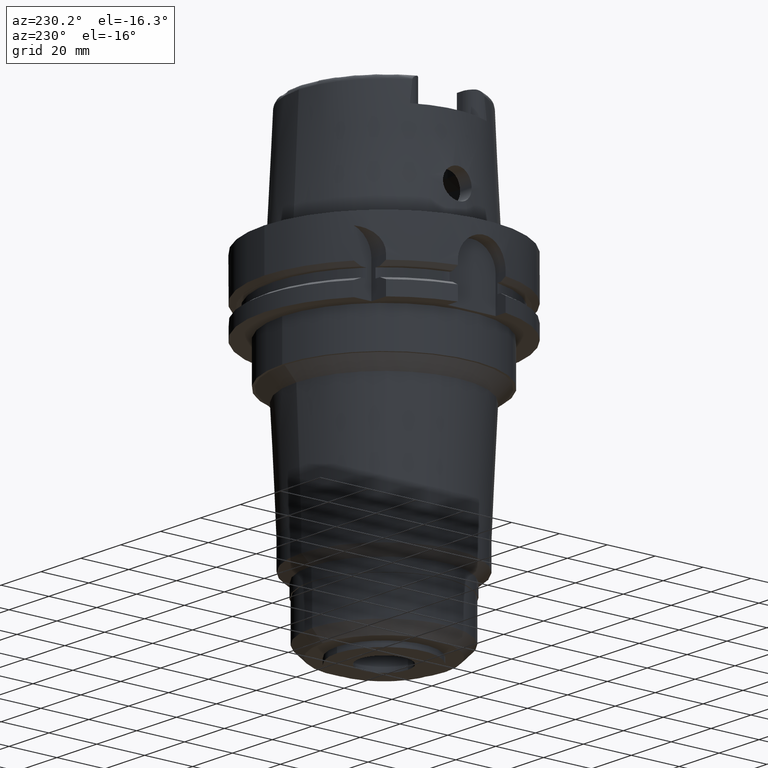
[diagram: clean part render]
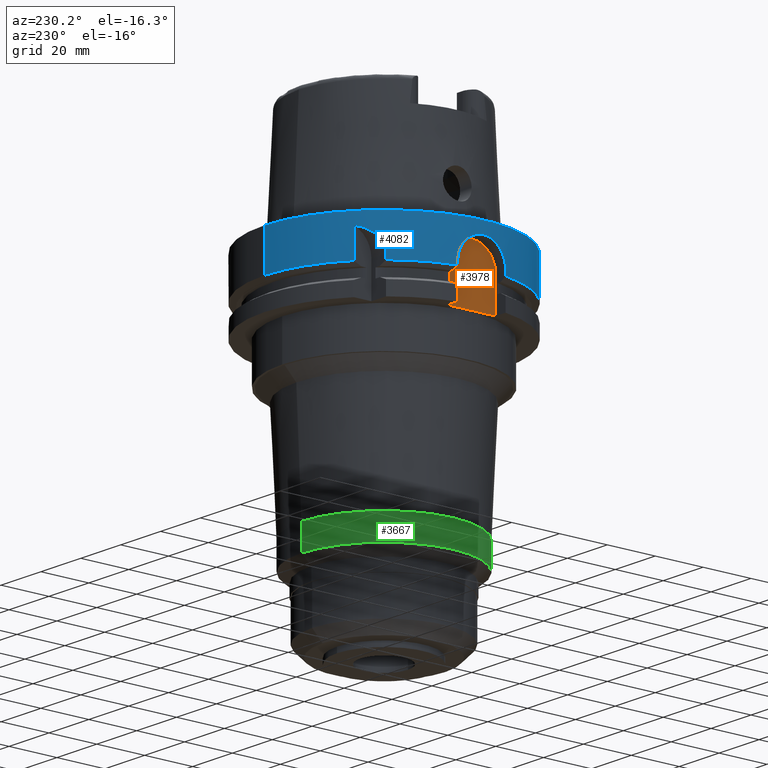
[diagram: same view with three faces highlighted in distinct colors, each labeled with its STEP entity id]
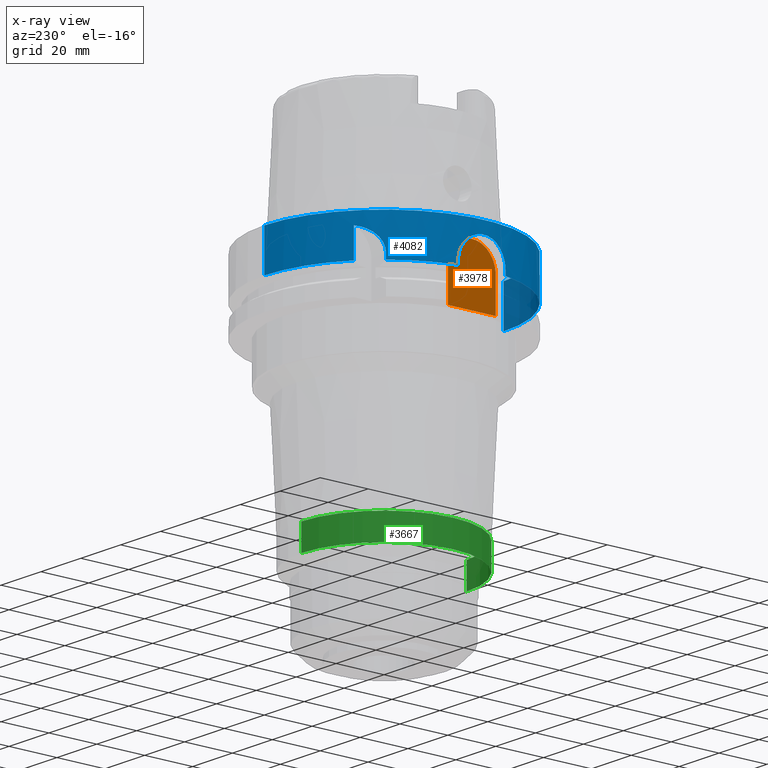
[diagram: x-ray of the same camera — body ghosted, the three highlighted faces saturated]
A machine part, auxiliary view with three faces highlighted in distinct colors.
The next image is the same camera in x-ray (body ghosted, the three faces saturated) — at least one of them is partly hidden behind the body in this view.
Their STEP definitions:

[orange] entity #3978 — the highlighted planar face has unit normal (1, 0, 0).
#1545=DIRECTION('',(0.E0,0.E0,1.E0));
#1546=VECTOR('',#1545,1.4E1);
#1547=CARTESIAN_POINT('',(-4.4E1,-1.E1,-2.9E1));
#1548=LINE('',#1547,#1546);
#1559=DIRECTION('',(0.E0,1.E0,0.E0));
#1560=VECTOR('',#1559,2.E1);
#1561=CARTESIAN_POINT('',(-4.4E1,-1.E1,-2.9E1));
#1562=LINE('',#1561,#1560);
#1566=CARTESIAN_POINT('',(-4.4E1,0.E0,-1.5E1));
#1567=DIRECTION('',(1.E0,0.E0,0.E0));
#1568=DIRECTION('',(0.E0,1.E0,0.E0));
#1569=AXIS2_PLACEMENT_3D('',#1566,#1567,#1568);
#1574=CARTESIAN_POINT('',(-4.4E1,0.E0,-1.5E1));
#1575=DIRECTION('',(1.E0,0.E0,0.E0));
#1576=DIRECTION('',(0.E0,0.E0,1.E0));
#1577=AXIS2_PLACEMENT_3D('',#1574,#1575,#1576);
#1596=DIRECTION('',(0.E0,0.E0,-1.E0));
#1597=VECTOR('',#1596,1.4E1);
#1598=CARTESIAN_POINT('',(-4.4E1,1.E1,-1.5E1));
#1599=LINE('',#1598,#1597);
#2600=CARTESIAN_POINT('',(-4.4E1,1.E1,-2.9E1));
#2601=VERTEX_POINT('',#2600);
#2602=CARTESIAN_POINT('',(-4.4E1,-1.E1,-2.9E1));
#2603=VERTEX_POINT('',#2602);
#2646=CARTESIAN_POINT('',(-4.4E1,-1.E1,-1.5E1));
#2647=VERTEX_POINT('',#2646);
#2659=CARTESIAN_POINT('',(-4.4E1,1.E1,-1.5E1));
#2660=VERTEX_POINT('',#2659);
#2661=CARTESIAN_POINT('',(-4.4E1,0.E0,-5.E0));
#2662=VERTEX_POINT('',#2661);
#3963=CARTESIAN_POINT('',(-4.4E1,0.E0,0.E0));
#3964=DIRECTION('',(1.E0,0.E0,0.E0));
#3965=DIRECTION('',(0.E0,0.E0,1.E0));
#3966=AXIS2_PLACEMENT_3D('',#3963,#3964,#3965);
#3967=PLANE('',#3966);
#3968=ORIENTED_EDGE('',*,*,#3781,.T.);
#3970=ORIENTED_EDGE('',*,*,#3969,.F.);
#3972=ORIENTED_EDGE('',*,*,#3971,.T.);
#3974=ORIENTED_EDGE('',*,*,#3973,.T.);
#3975=ORIENTED_EDGE('',*,*,#3943,.F.);
#3976=EDGE_LOOP('',(#3968,#3970,#3972,#3974,#3975));
#3977=FACE_OUTER_BOUND('',#3976,.F.);
#1570=CIRCLE('',#1569,1.E1);
#1578=CIRCLE('',#1577,1.E1);
#3781=EDGE_CURVE('',#2603,#2601,#1562,.T.);
#3943=EDGE_CURVE('',#2603,#2647,#1548,.T.);
#3969=EDGE_CURVE('',#2660,#2601,#1599,.T.);
#3971=EDGE_CURVE('',#2660,#2662,#1570,.T.);
#3973=EDGE_CURVE('',#2662,#2647,#1578,.T.);
#3978=ADVANCED_FACE('',(#3977),#3967,.F.);

[blue] entity #4082 — the highlighted cylindrical surface (partial cylindrical patch) has radius 50 mm, axis along (0, 0, -1).
#1648=DIRECTION('',(7.023958081267E-8,5.698055157315E-8,-1.E0));
#1649=VECTOR('',#1648,1.175240773721E1);
#1650=CARTESIAN_POINT('',(-3.15E1,3.882975663071E1,-5.000000000003E0));
#1651=LINE('',#1650,#1649);
#1655=DIRECTION('',(0.E0,2.926591706721E-14,-1.E0));
#1656=VECTOR('',#1655,1.675240473581E1);
#1657=CARTESIAN_POINT('',(0.E0,-5.E1,6.631732200428E-14));
#1658=LINE('',#1657,#1656);
#1662=DIRECTION('',(3.933032361779E-13,-2.432803522750E-14,1.E0));
#1663=VECTOR('',#1662,1.752404735809E0);
#1664=CARTESIAN_POINT('',(-4.898979485566E1,-1.E1,-1.675240473581E1));
#1665=LINE('',#1664,#1663);
#1669=DIRECTION('',(-4.014125812538E-13,-2.230069895854E-14,-1.E0));
#1670=VECTOR('',#1669,1.752404735809E0);
#1671=CARTESIAN_POINT('',(-4.898979485566E1,1.E1,-1.5E1));
#1672=LINE('',#1671,#1670);
#1676=DIRECTION('',(-1.365148137456E-6,-1.682804141260E-6,9.999999999977E-1));
#1677=VECTOR('',#1676,2.115493932319E0);
#1678=CARTESIAN_POINT('',(-3.882975374275E1,3.150000355996E1,
-1.675239179152E1));
#1679=LINE('',#1678,#1677);
#1683=CARTESIAN_POINT('',(-3.882975663071E1,3.15E1,-1.463689785921E1));
#1684=CARTESIAN_POINT('',(-3.882975663071E1,3.15E1,-1.433064616821E1));
#1685=CARTESIAN_POINT('',(-3.880705422970E1,3.152801625396E1,
-1.372017333491E1));
#1686=CARTESIAN_POINT('',(-3.870428885565E1,3.165427416406E1,
-1.280789797049E1));
#1687=CARTESIAN_POINT('',(-3.853135160639E1,3.186487466063E1,
-1.190702947096E1));
#1688=CARTESIAN_POINT('',(-3.828481064790E1,3.216112138799E1,
-1.102040384754E1));
#1689=CARTESIAN_POINT('',(-3.796154875337E1,3.254265071600E1,
-1.015735258912E1));
#1690=CARTESIAN_POINT('',(-3.755549775941E1,3.301119514877E1,
-9.321662307711E0));
#1691=CARTESIAN_POINT('',(-3.705885492241E1,3.356872838063E1,
-8.519828889401E0));
#1692=CARTESIAN_POINT('',(-3.646394593133E1,3.421519580033E1,
-7.761523285296E0));
#1693=CARTESIAN_POINT('',(-3.575809827891E1,3.495362824459E1,
-7.053893448232E0));
#1694=CARTESIAN_POINT('',(-3.493062110161E1,3.578229936536E1,
-6.409707496162E0));
#1695=CARTESIAN_POINT('',(-3.396221594229E1,3.670477659687E1,
-5.838585168829E0));
#1696=CARTESIAN_POINT('',(-3.283745498727E1,3.771686812123E1,
-5.356688262591E0));
#1697=CARTESIAN_POINT('',(-3.196702761034E1,3.845088818027E1,
-5.104978903215E0));
#1698=CARTESIAN_POINT('',(-3.15E1,3.882975663071E1,-5.000000000003E0));
#1703=CARTESIAN_POINT('',(-3.149999917452E1,3.882975730037E1,
-1.675240773721E1));
#1731=CARTESIAN_POINT('',(0.E0,1.011084288786E-14,-1.675240473581E1));
#1732=DIRECTION('',(0.E0,0.E0,1.E0));
#1733=DIRECTION('',(0.E0,1.E0,0.E0));
#1734=AXIS2_PLACEMENT_3D('',#1731,#1732,#1733);
#1878=DIRECTION('',(0.E0,-2.926591706721E-14,-1.E0));
#1879=VECTOR('',#1878,1.675240473581E1);
#1880=CARTESIAN_POINT('',(0.E0,5.E1,6.631732200428E-14));
#1881=LINE('',#1880,#1879);
#1952=CARTESIAN_POINT('',(0.E0,1.011084288786E-14,-1.675240473581E1));
#1953=DIRECTION('',(0.E0,0.E0,1.E0));
#1954=DIRECTION('',(-9.797958971133E-1,-2.E-1,0.E0));
#1955=AXIS2_PLACEMENT_3D('',#1952,#1953,#1954);
#2106=CARTESIAN_POINT('',(0.E0,1.951719603801E-14,9.237055564881E-14));
#2107=DIRECTION('',(0.E0,0.E0,-1.E0));
#2108=DIRECTION('',(0.E0,-1.E0,0.E0));
#2109=AXIS2_PLACEMENT_3D('',#2106,#2107,#2108);
#2138=CARTESIAN_POINT('',(-4.898979485566E1,1.E1,-1.5E1));
#2139=CARTESIAN_POINT('',(-4.898979485566E1,1.E1,-1.426108339054E1));
#2140=CARTESIAN_POINT('',(-4.902380397179E1,9.835573181092E0,
-1.277773796762E1));
#2141=CARTESIAN_POINT('',(-4.916882506048E1,9.096390976145E0,
-1.064602762517E1));
#2142=CARTESIAN_POINT('',(-4.938004913442E1,7.892536922872E0,
-8.720777334128E0));
#2143=CARTESIAN_POINT('',(-4.961472990509E1,6.281193322602E0,
-7.108977901548E0));
#2144=CARTESIAN_POINT('',(-4.982397989539E1,4.355986646170E0,
-5.904662998027E0));
#2145=CARTESIAN_POINT('',(-4.996651786456E1,2.226278022797E0,
-5.165424488101E0));
#2146=CARTESIAN_POINT('',(-5.001677347920E1,-1.478587469200E-3,
-4.917124513238E0));
#2147=CARTESIAN_POINT('',(-4.996638810610E1,-2.229127438262E0,
-5.166078098979E0));
#2148=CARTESIAN_POINT('',(-4.982375143675E1,-4.358568224988E0,
-5.905888858995E0));
#2149=CARTESIAN_POINT('',(-4.961443094385E1,-6.283534592861E0,
-7.110860296475E0));
#2150=CARTESIAN_POINT('',(-4.937976574419E1,-7.894254858084E0,
-8.722905111692E0));
#2151=CARTESIAN_POINT('',(-4.916856876748E1,-9.097827969053E0,
-1.064902048529E1));
#2152=CARTESIAN_POINT('',(-4.902370122882E1,-9.835971298666E0,
-1.278006468368E1));
#2153=CARTESIAN_POINT('',(-4.898979485566E1,-1.E1,-1.426200339766E1));
#2154=CARTESIAN_POINT('',(-4.898979485566E1,-1.E1,-1.5E1));
#2178=CARTESIAN_POINT('',(-3.882975374275E1,3.150000355996E1,
-1.675239179152E1));
#2183=CARTESIAN_POINT('',(0.E0,1.011084288786E-14,-1.675240473581E1));
#2184=DIRECTION('',(0.E0,0.E0,1.E0));
#2185=DIRECTION('',(-7.765951326142E-1,6.3E-1,0.E0));
#2186=AXIS2_PLACEMENT_3D('',#2183,#2184,#2185);
#2191=CARTESIAN_POINT('',(-4.898979485566E1,1.E1,-1.675240473581E1));
#2627=VERTEX_POINT('',#1703);
#2628=CARTESIAN_POINT('',(-3.15E1,3.882975663071E1,-5.000000000003E0));
#2629=VERTEX_POINT('',#2628);
#2648=CARTESIAN_POINT('',(-4.898979485566E1,-1.E1,-1.5E1));
#2649=VERTEX_POINT('',#2648);
#2650=CARTESIAN_POINT('',(-4.898979485566E1,-1.E1,-1.675240473581E1));
#2651=VERTEX_POINT('',#2650);
#2670=VERTEX_POINT('',#2191);
#2671=CARTESIAN_POINT('',(-4.898979485566E1,1.E1,-1.5E1));
#2672=VERTEX_POINT('',#2671);
#2711=CARTESIAN_POINT('',(0.E0,-5.E1,-1.675240473581E1));
#2712=VERTEX_POINT('',#2711);
#2716=CARTESIAN_POINT('',(0.E0,5.E1,-1.675240473581E1));
#2717=VERTEX_POINT('',#2716);
#2718=VERTEX_POINT('',#2178);
#2719=CARTESIAN_POINT('',(0.E0,5.E1,6.631732200428E-14));
#2720=VERTEX_POINT('',#2719);
#2721=CARTESIAN_POINT('',(0.E0,-5.E1,9.237055564881E-14));
#2722=VERTEX_POINT('',#2721);
#2723=CARTESIAN_POINT('',(-3.882975663071E1,3.15E1,-1.463689785921E1));
#2724=VERTEX_POINT('',#2723);
#4056=CARTESIAN_POINT('',(0.E0,1.951719603801E-14,5.937E1));
#4057=DIRECTION('',(0.E0,0.E0,-1.E0));
#4058=DIRECTION('',(0.E0,-1.E0,0.E0));
#4059=AXIS2_PLACEMENT_3D('',#4056,#4057,#4058);
#4060=CYLINDRICAL_SURFACE('',#4059,5.E1);
#4061=ORIENTED_EDGE('',*,*,#3824,.T.);
#4063=ORIENTED_EDGE('',*,*,#4062,.F.);
#4065=ORIENTED_EDGE('',*,*,#4064,.F.);
#4067=ORIENTED_EDGE('',*,*,#4066,.F.);
#4069=ORIENTED_EDGE('',*,*,#4068,.T.);
#4071=ORIENTED_EDGE('',*,*,#4070,.F.);
#4072=ORIENTED_EDGE('',*,*,#3947,.T.);
#4074=ORIENTED_EDGE('',*,*,#4073,.F.);
#4075=ORIENTED_EDGE('',*,*,#3997,.T.);
#4077=ORIENTED_EDGE('',*,*,#4076,.F.);
#4078=ORIENTED_EDGE('',*,*,#4028,.T.);
#4079=ORIENTED_EDGE('',*,*,#4049,.T.);
#4080=EDGE_LOOP('',(#4061,#4063,#4065,#4067,#4069,#4071,#4072,#4074,#4075,#4077,
#4078,#4079));
#4081=FACE_OUTER_BOUND('',#4080,.F.);
#1699=B_SPLINE_CURVE_WITH_KNOTS('',3,(#1683,#1684,#1685,#1686,#1687,#1688,#1689,
#1690,#1691,#1692,#1693,#1694,#1695,#1696,#1697,#1698),.UNSPECIFIED.,.F.,.F.,(4,
1,1,1,1,1,1,1,1,1,1,1,1,4),(0.E0,7.692307692308E-2,1.538461538462E-1,
2.307692307692E-1,3.076923076923E-1,3.846153846154E-1,4.615384615385E-1,
5.384615384615E-1,6.153846153846E-1,6.923076923077E-1,7.692307692308E-1,
8.461538461538E-1,9.230769230769E-1,1.E0),.UNSPECIFIED.);
#1735=CIRCLE('',#1734,5.E1);
#1956=CIRCLE('',#1955,5.E1);
#2110=CIRCLE('',#2109,5.E1);
#2155=B_SPLINE_CURVE_WITH_KNOTS('',3,(#2138,#2139,#2140,#2141,#2142,#2143,#2144,
#2145,#2146,#2147,#2148,#2149,#2150,#2151,#2152,#2153,#2154),.UNSPECIFIED.,.F.,
.F.,(4,1,1,1,1,1,1,1,1,1,1,1,1,1,4),(0.E0,7.142857142857E-2,1.428571428571E-1,
2.142857142857E-1,2.857142857143E-1,3.571428571429E-1,4.285714285714E-1,5.E-1,
5.714285714286E-1,6.428571428571E-1,7.142857142857E-1,7.857142857143E-1,
8.571428571429E-1,9.285714285714E-1,1.E0),.UNSPECIFIED.);
#2187=CIRCLE('',#2186,5.E1);
#3824=EDGE_CURVE('',#2629,#2627,#1651,.T.);
#3947=EDGE_CURVE('',#2651,#2649,#1665,.T.);
#3997=EDGE_CURVE('',#2672,#2670,#1672,.T.);
#4028=EDGE_CURVE('',#2718,#2724,#1679,.T.);
#4049=EDGE_CURVE('',#2724,#2629,#1699,.T.);
#4062=EDGE_CURVE('',#2717,#2627,#1735,.T.);
#4064=EDGE_CURVE('',#2720,#2717,#1881,.T.);
#4066=EDGE_CURVE('',#2722,#2720,#2110,.T.);
#4068=EDGE_CURVE('',#2722,#2712,#1658,.T.);
#4070=EDGE_CURVE('',#2651,#2712,#1956,.T.);
#4073=EDGE_CURVE('',#2672,#2649,#2155,.T.);
#4076=EDGE_CURVE('',#2718,#2670,#2187,.T.);
#4082=ADVANCED_FACE('',(#4081),#4060,.T.);

[green] entity #3667 — the highlighted cylindrical surface (partial cylindrical patch) has radius 34.5 mm, axis along (0, 0, -1).
#1177=CARTESIAN_POINT('',(0.E0,0.E0,-1.067E2));
#1178=DIRECTION('',(0.E0,0.E0,1.E0));
#1179=DIRECTION('',(0.E0,1.E0,0.E0));
#1180=AXIS2_PLACEMENT_3D('',#1177,#1178,#1179);
#1223=DIRECTION('',(0.E0,-6.104757531252E-13,-1.E0));
#1224=VECTOR('',#1223,1.057999999999E1);
#1225=CARTESIAN_POINT('',(0.E0,3.45E1,-9.612E1));
#1226=LINE('',#1225,#1224);
#1230=DIRECTION('',(0.E0,6.104757531252E-13,-1.E0));
#1231=VECTOR('',#1230,1.057999999999E1);
#1232=CARTESIAN_POINT('',(0.E0,-3.45E1,-9.612E1));
#1233=LINE('',#1232,#1231);
#1244=CARTESIAN_POINT('',(0.E0,0.E0,-9.612E1));
#1245=DIRECTION('',(0.E0,0.E0,-1.E0));
#1246=DIRECTION('',(0.E0,-1.E0,0.E0));
#1247=AXIS2_PLACEMENT_3D('',#1244,#1245,#1246);
#2568=CARTESIAN_POINT('',(0.E0,3.449999999999E1,-1.067E2));
#2569=VERTEX_POINT('',#2568);
#2570=CARTESIAN_POINT('',(0.E0,-3.449999999998E1,-1.067E2));
#2571=VERTEX_POINT('',#2570);
#2572=CARTESIAN_POINT('',(0.E0,3.45E1,-9.612E1));
#2573=VERTEX_POINT('',#2572);
#2574=CARTESIAN_POINT('',(0.E0,-3.45E1,-9.612E1));
#2575=VERTEX_POINT('',#2574);
#3655=CARTESIAN_POINT('',(0.E0,1.951719603801E-14,5.937E1));
#3656=DIRECTION('',(0.E0,0.E0,-1.E0));
#3657=DIRECTION('',(0.E0,-1.E0,0.E0));
#3658=AXIS2_PLACEMENT_3D('',#3655,#3656,#3657);
#3659=CYLINDRICAL_SURFACE('',#3658,3.45E1);
#3660=ORIENTED_EDGE('',*,*,#3645,.F.);
#3662=ORIENTED_EDGE('',*,*,#3661,.F.);
#3663=ORIENTED_EDGE('',*,*,#3648,.T.);
#3664=ORIENTED_EDGE('',*,*,#3619,.F.);
#3665=EDGE_LOOP('',(#3660,#3662,#3663,#3664));
#3666=FACE_OUTER_BOUND('',#3665,.F.);
#1181=CIRCLE('',#1180,3.449999999998E1);
#1248=CIRCLE('',#1247,3.45E1);
#3619=EDGE_CURVE('',#2569,#2571,#1181,.T.);
#3645=EDGE_CURVE('',#2573,#2569,#1226,.T.);
#3648=EDGE_CURVE('',#2575,#2571,#1233,.T.);
#3661=EDGE_CURVE('',#2575,#2573,#1248,.T.);
#3667=ADVANCED_FACE('',(#3666),#3659,.T.);